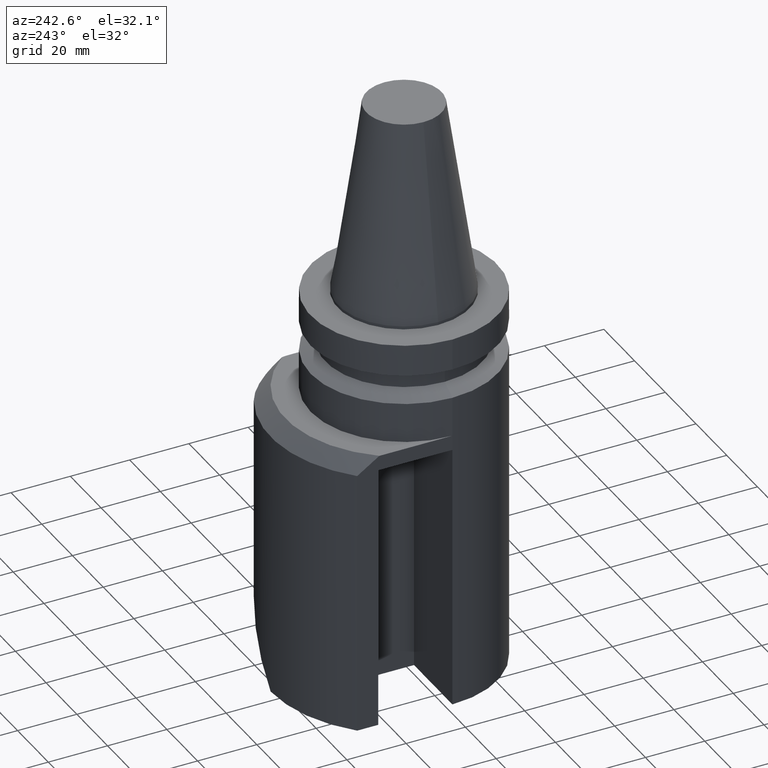
[diagram: clean part render]
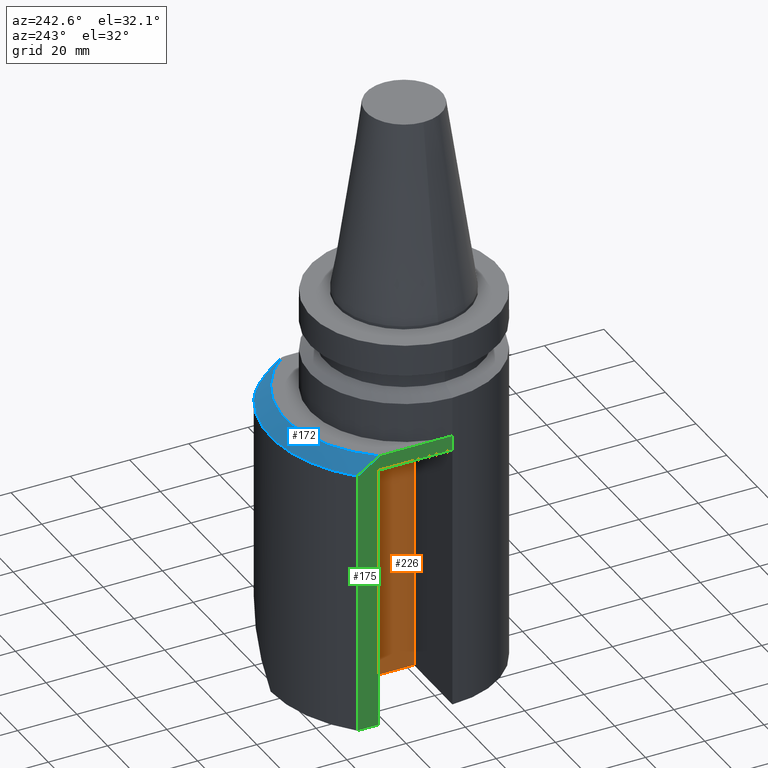
[diagram: same view with three faces highlighted in distinct colors, each labeled with its STEP entity id]
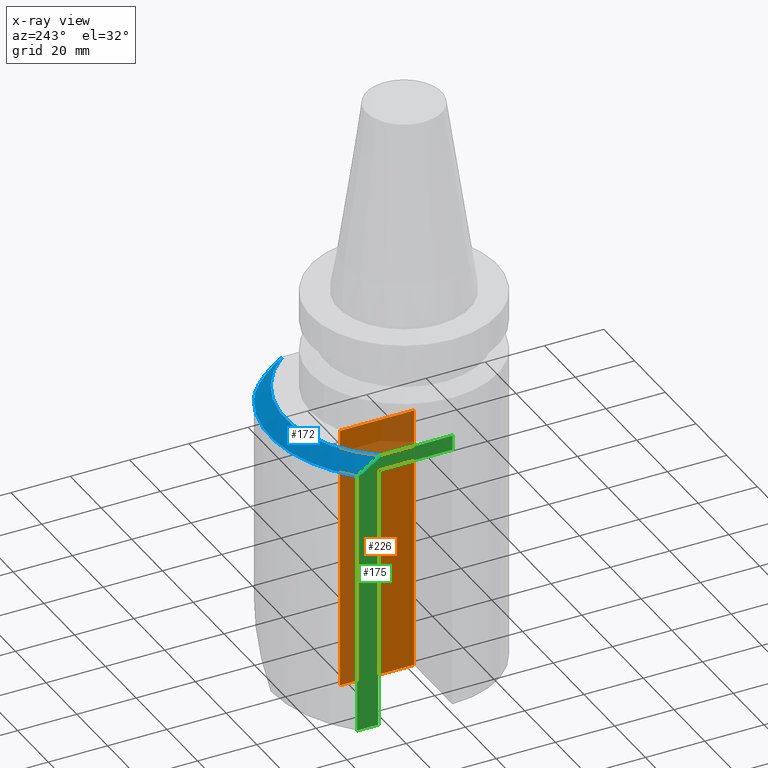
[diagram: x-ray of the same camera — body ghosted, the three highlighted faces saturated]
A machine part, auxiliary view with three faces highlighted in distinct colors.
The next image is the same camera in x-ray (body ghosted, the three faces saturated) — at least one of them is partly hidden behind the body in this view.
Their STEP definitions:

[orange] entity #226 — the highlighted planar face has unit normal (-1, 0, 0).
#118=EDGE_CURVE('240[2]',#278,#297,#298,.T.);
#136=EDGE_CURVE('240[2]',#249,#297,#320,.T.);
#138=EDGE_CURVE('240[2]',#322,#278,#323,.T.);
#204=EDGE_CURVE('240[2]',#249,#322,#416,.T.);
#226=ADVANCED_FACE('240[2]',(#445),#446,.T.);
#249=VERTEX_POINT('',#460);
#278=VERTEX_POINT('',#500);
#297=VERTEX_POINT('',#529);
#298=LINE('',#530,#531);
#320=LINE('',#563,#564);
#322=VERTEX_POINT('',#567);
#323=LINE('',#568,#569);
#416=LINE('',#702,#703);
#445=FACE_OUTER_BOUND('',#752,.T.);
#446=PLANE('',#753);
#460=CARTESIAN_POINT('',(-6.5000056898272,25.0,-130.0));
#500=CARTESIAN_POINT('',(-6.50000568982718,-3.64332527266767E-015,-40.0));
#529=CARTESIAN_POINT('',(-6.50000568982719,25.0,-40.0));
#530=CARTESIAN_POINT('',(-6.50000568982718,-3.64332527266767E-015,-40.0));
#531=VECTOR('',#804,25.0);
#563=CARTESIAN_POINT('',(-6.5000056898272,25.0,-130.0));
#564=VECTOR('',#834,90.0);
#567=CARTESIAN_POINT('',(-6.50000568982719,-9.15423586883077E-015,-130.0));
#568=CARTESIAN_POINT('',(-6.50000568982719,-9.15423586883077E-015,-130.0));
#569=VECTOR('',#835,90.0);
#702=CARTESIAN_POINT('',(-6.50000568982719,25.0,-130.0));
#703=VECTOR('',#953,25.0);
#752=EDGE_LOOP('',(#992,#993,#994,#995));
#753=AXIS2_PLACEMENT_3D('',#996,#997,#998);
#804=DIRECTION('',(0.0,1.0,0.0));
#834=DIRECTION('',(0.0,0.0,1.0));
#835=DIRECTION('',(0.0,0.0,1.0));
#953=DIRECTION('',(0.0,-1.0,0.0));
#992=ORIENTED_EDGE('',*,*,#118,.T.);
#993=ORIENTED_EDGE('',*,*,#136,.F.);
#994=ORIENTED_EDGE('',*,*,#204,.T.);
#995=ORIENTED_EDGE('',*,*,#138,.T.);
#996=CARTESIAN_POINT('',(-6.50000568982719,-9.15423586883077E-015,-130.0));
#997=DIRECTION('',(-1.0,0.0,0.0));
#998=DIRECTION('',(0.0,0.0,1.0));

[blue] entity #172 — the highlighted conical surface has half-angle 45 deg.
#160=EDGE_CURVE('240[2]',#274,#281,#354,.T.);
#167=EDGE_CURVE('240[2]',#351,#281,#363,.T.);
#172=ADVANCED_FACE('240[2]',(#369),#370,.T.);
#195=EDGE_CURVE('240[2]',#404,#351,#405,.T.);
#212=EDGE_CURVE('240[2]',#274,#404,#426,.T.);
#274=VERTEX_POINT('',#494);
#281=VERTEX_POINT('',#505);
#351=VERTEX_POINT('',#606);
#354=CIRCLE('',#611,45.0);
#363=(B_SPLINE_CURVE(2,(#625,#626,#627),.UNSPECIFIED.,.F.,.F.)B_SPLINE_CURVE_WITH_KNOTS((3,3),(1269.79654633776,1343.3851522784),.UNSPECIFIED.)RATIONAL_B_SPLINE_CURVE((9.88857542016709,9.5972301136978,9.24226330118482))BOUNDED_CURVE()REPRESENTATION_ITEM('')GEOMETRIC_REPRESENTATION_ITEM()CURVE());
#369=FACE_OUTER_BOUND('',#641,.T.);
#370=CONICAL_SURFACE('',#642,42.5,0.785398163397448);
#404=VERTEX_POINT('',#686);
#405=CIRCLE('',#687,40.0);
#426=B_SPLINE_CURVE_WITH_KNOTS('',3,(#717,#718,#719,#720,#721,#722,#723,#724,#725,#726,#727,#728),.UNSPECIFIED.,.F.,.F.,(4,2,2,2,2,4),(3.6448240647727,4.06943192137555,4.49403977797839,4.91864763458123,5.34325549118408,5.58489350391862),.UNSPECIFIED.);
#494=CARTESIAN_POINT('',(20.7000000003111,39.9563511842665,-39.9999999997035));
#505=CARTESIAN_POINT('',(-31.4999999979768,32.136427930426,-40.0));
#606=CARTESIAN_POINT('',(-31.4999999979768,24.6525860738272,-35.0));
#611=AXIS2_PLACEMENT_3D('',#876,#877,#878);
#625=CARTESIAN_POINT('',(-31.4999999979768,24.6525860738272,-35.0));
#626=CARTESIAN_POINT('',(-31.4999999979768,28.1743940063443,-37.1705418297966));
#627=CARTESIAN_POINT('',(-31.4999999979768,32.136427930426,-40.0));
#641=EDGE_LOOP('',(#890,#891,#892,#893));
#642=AXIS2_PLACEMENT_3D('',#894,#895,#896);
#686=CARTESIAN_POINT('',(31.3190777410008,24.8820290461439,-35.0));
#687=AXIS2_PLACEMENT_3D('',#939,#940,#941);
#717=CARTESIAN_POINT('',(20.7000000003111,39.9563511842665,-39.9999999997035));
#718=CARTESIAN_POINT('',(21.9567244917306,39.3052858041324,-39.9999999997083));
#719=CARTESIAN_POINT('',(23.1716294908664,38.5038773242289,-39.915406152038));
#720=CARTESIAN_POINT('',(25.4050109414492,36.6465065579947,-39.5679453349064));
#721=CARTESIAN_POINT('',(26.4235938720837,35.59066700866,-39.3051067052726));
#722=CARTESIAN_POINT('',(28.1899230558646,33.312125702104,-38.6166259583971));
#723=CARTESIAN_POINT('',(28.9398045203835,32.0867683818523,-38.1900288645896));
#724=CARTESIAN_POINT('',(30.1408535510776,29.577243661181,-37.2088852936142));
#725=CARTESIAN_POINT('',(30.5920445768402,28.2931767156501,-36.6541106110761));
#726=CARTESIAN_POINT('',(31.0815476164028,26.3331686854598,-35.7317252069591));
#727=CARTESIAN_POINT('',(31.2204576910933,25.6102397522291,-35.3757667732663));
#728=CARTESIAN_POINT('',(31.3190777410008,24.8820290461439,-35.0));
#876=CARTESIAN_POINT('',(-4.89858719658941E-015,-2.44929359829471E-015,-40.0));
#877=DIRECTION('',(0.0,0.0,1.0));
#878=DIRECTION('',(-1.0,0.0,0.0));
#890=ORIENTED_EDGE('',*,*,#195,.F.);
#891=ORIENTED_EDGE('',*,*,#212,.F.);
#892=ORIENTED_EDGE('',*,*,#160,.T.);
#893=ORIENTED_EDGE('',*,*,#167,.F.);
#894=CARTESIAN_POINT('',(-4.59242549680257E-015,-2.29621274840129E-015,-37.5));
#895=DIRECTION('',(-0.0,-0.0,-1.0));
#896=DIRECTION('',(-1.0,0.0,0.0));
#939=CARTESIAN_POINT('',(-4.28626379701574E-015,-2.14313189850787E-015,-35.0));
#940=DIRECTION('',(0.0,0.0,1.0));
#941=DIRECTION('',(-1.0,0.0,0.0));

[green] entity #175 — the highlighted planar face has unit normal (-1, 0, 0).
#91=EDGE_CURVE('240[2]',#255,#248,#256,.T.);
#107=EDGE_CURVE('240[2]',#281,#258,#282,.F.);
#116=EDGE_CURVE('240[2]',#277,#255,#295,.T.);
#151=EDGE_CURVE('240[2]',#340,#277,#341,.T.);
#158=EDGE_CURVE('240[2]',#340,#351,#352,.T.);
#162=EDGE_CURVE('240[2]',#248,#258,#356,.T.);
#167=EDGE_CURVE('240[2]',#351,#281,#363,.T.);
#175=ADVANCED_FACE('240[2]',(#373),#374,.T.);
#248=VERTEX_POINT('',#459);
#255=VERTEX_POINT('',#468);
#256=LINE('',#469,#470);
#258=VERTEX_POINT('',#473);
#277=VERTEX_POINT('',#499);
#281=VERTEX_POINT('',#505);
#282=LINE('',#506,#507);
#295=LINE('',#525,#526);
#340=VERTEX_POINT('',#591);
#341=LINE('',#592,#593);
#351=VERTEX_POINT('',#606);
#352=LINE('',#607,#608);
#356=LINE('',#614,#615);
#363=(B_SPLINE_CURVE(2,(#625,#626,#627),.UNSPECIFIED.,.F.,.F.)B_SPLINE_CURVE_WITH_KNOTS((3,3),(1269.79654633776,1343.3851522784),.UNSPECIFIED.)RATIONAL_B_SPLINE_CURVE((9.88857542016709,9.5972301136978,9.24226330118482))BOUNDED_CURVE()REPRESENTATION_ITEM('')GEOMETRIC_REPRESENTATION_ITEM()CURVE());
#373=FACE_OUTER_BOUND('',#646,.T.);
#374=PLANE('',#647);
#459=CARTESIAN_POINT('',(-31.4999999979768,25.0,-130.0));
#468=CARTESIAN_POINT('',(-31.5000056898272,25.0,-40.0));
#469=CARTESIAN_POINT('',(-31.4999999979768,25.0,-40.0));
#470=VECTOR('',#764,89.000000002308);
#473=CARTESIAN_POINT('',(-31.4999999979768,32.136427930426,-130.0));
#499=CARTESIAN_POINT('',(-31.5000056898272,-8.23575076947025E-015,-40.0));
#505=CARTESIAN_POINT('',(-31.4999999979768,32.136427930426,-40.0));
#506=CARTESIAN_POINT('',(-31.4999999979768,32.136427930426,-83.0));
#507=VECTOR('',#790,1.0);
#525=CARTESIAN_POINT('',(-31.4999999979768,-8.88178419700125E-015,-40.0));
#526=VECTOR('',#803,25.0);
#591=CARTESIAN_POINT('',(-31.5,-7.92958802447911E-015,-35.0));
#592=CARTESIAN_POINT('',(-31.4999999979768,-1.37466603200574E-014,-35.0));
#593=VECTOR('',#865,5.0);
#606=CARTESIAN_POINT('',(-31.4999999979768,24.6525860738272,-35.0));
#607=CARTESIAN_POINT('',(-31.4999999979768,-7.92958802447911E-015,-35.0));
#608=VECTOR('',#875,24.6525860738272);
#614=CARTESIAN_POINT('',(-31.4999999979768,-1.27057105410387E-014,-130.0));
#615=VECTOR('',#879,1.0);
#625=CARTESIAN_POINT('',(-31.4999999979768,24.6525860738272,-35.0));
#626=CARTESIAN_POINT('',(-31.4999999979768,28.1743940063443,-37.1705418297966));
#627=CARTESIAN_POINT('',(-31.4999999979768,32.136427930426,-40.0));
#646=EDGE_LOOP('',(#898,#899,#900,#901,#902,#903,#904));
#647=AXIS2_PLACEMENT_3D('',#905,#906,#907);
#764=DIRECTION('',(0.0,0.0,-1.0));
#790=DIRECTION('',(0.0,-0.0,1.0));
#803=DIRECTION('',(0.0,1.0,0.0));
#865=DIRECTION('',(0.0,0.0,-1.0));
#875=DIRECTION('',(0.0,1.0,0.0));
#879=DIRECTION('',(0.0,1.0,0.0));
#898=ORIENTED_EDGE('',*,*,#116,.F.);
#899=ORIENTED_EDGE('',*,*,#151,.F.);
#900=ORIENTED_EDGE('',*,*,#158,.T.);
#901=ORIENTED_EDGE('',*,*,#167,.T.);
#902=ORIENTED_EDGE('',*,*,#107,.T.);
#903=ORIENTED_EDGE('',*,*,#162,.F.);
#904=ORIENTED_EDGE('',*,*,#91,.F.);
#905=CARTESIAN_POINT('',(-31.4999999979768,-1.36854279802414E-014,-129.000000002308));
#906=DIRECTION('',(-1.0,0.0,0.0));
#907=DIRECTION('',(0.0,0.0,1.0));